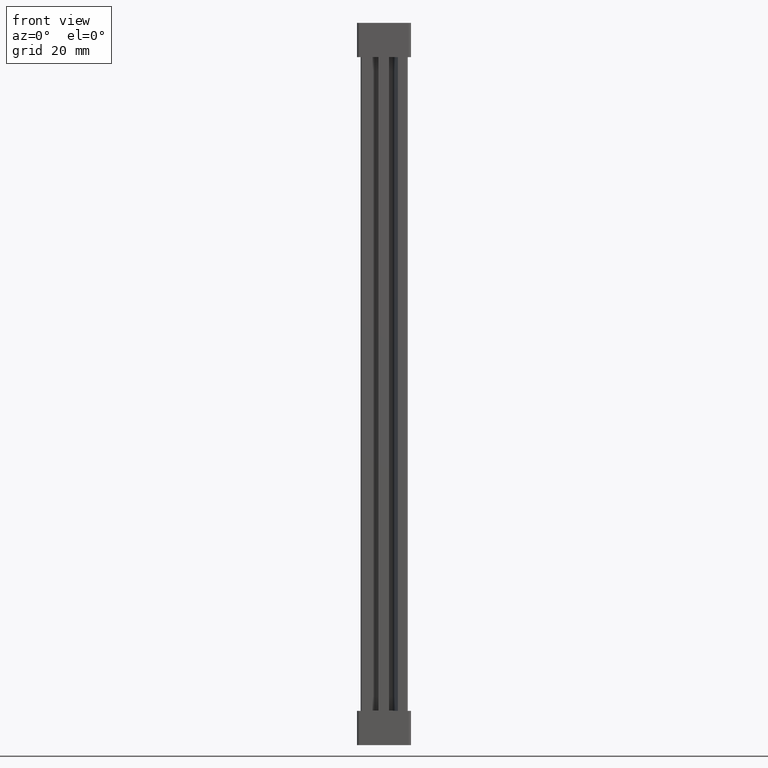
[diagram: clean part render]
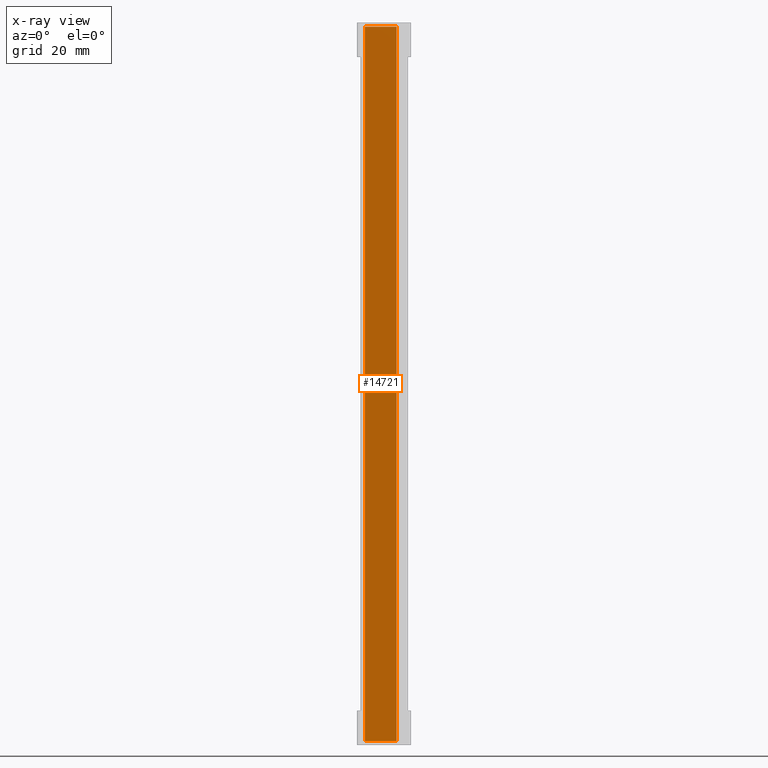
[diagram: x-ray — body ghosted, one internal face saturated and labeled with its STEP entity id]
A machine part, front view, then the same camera in x-ray: the body is ghosted and one INTERNAL B-rep face — a face not visible from any outside direction — is saturated and labeled: STEP entity #14721.
In plain terms, the highlighted planar face has unit normal (0, 1, 0).
Its self-contained STEP definition (entity closure, byte-faithful):
#284 = CARTESIAN_POINT ( 'NONE',  ( 0.6259999999999179600, 16.44999999999992800, 217.8000000000582500 ) ) ;
#1159 = CARTESIAN_POINT ( 'NONE',  ( 10.24323328473354500, 16.44999999999992800, 217.8000000000267300 ) ) ;
#2345 = CARTESIAN_POINT ( 'NONE',  ( 10.24323328473354500, 16.44999999999992800, 1.199999999946530100 ) ) ;
#2378 = CARTESIAN_POINT ( 'NONE',  ( 0.6259999999999179600, 16.44999999999992800, 1.199999999943343900 ) ) ;
#2586 = FACE_OUTER_BOUND ( 'NONE', #20987, .T. ) ;
#2588 = CARTESIAN_POINT ( 'NONE',  ( 6.525548534933081500, 16.44999999999992800, 220.2000000000000200 ) ) ;
#2589 = DIRECTION ( 'NONE',  ( 0.0000000000000000000, 1.000000000000000000, 0.0000000000000000000 ) ) ;
#2599 = PLANE ( 'NONE',  #16928 ) ;
#2670 = DIRECTION ( 'NONE',  ( 0.0000000000000000000, -0.0000000000000000000, 1.000000000000000000 ) ) ;
#3874 = CARTESIAN_POINT ( 'NONE',  ( 13.86600000010872900, 16.44999999999992800, 217.8000000000516800 ) ) ;
#3875 = DIRECTION ( 'NONE',  ( -1.000000000000000000, -0.0000000000000000000, 4.965472477636011600E-013 ) ) ;
#3906 = LINE ( 'NONE', #3874, #18875 ) ;
#4010 = CARTESIAN_POINT ( 'NONE',  ( 13.86600000010872900, 16.44999999999992800, 1.199999999948319100 ) ) ;
#4044 = LINE ( 'NONE', #4010, #18901 ) ;
#4060 = CARTESIAN_POINT ( 'NONE',  ( 0.6259999999999174000, 16.44999999999992800, 220.2000000000000200 ) ) ;
#4079 = LINE ( 'NONE', #4060, #18953 ) ;
#4082 = DIRECTION ( 'NONE',  ( 0.0000000000000000000, -0.0000000000000000000, 1.000000000000000000 ) ) ;
#4092 = DIRECTION ( 'NONE',  ( 1.000000000000000000, -0.0000000000000000000, 4.965472477636011600E-013 ) ) ;
#4129 = LINE ( 'NONE', #4143, #18974 ) ;
#4141 = DIRECTION ( 'NONE',  ( -0.0000000000000000000, -0.0000000000000000000, -1.000000000000000000 ) ) ;
#4143 = CARTESIAN_POINT ( 'NONE',  ( 10.24323328473354500, 16.44999999999991800, 220.2000000000000200 ) ) ;
#6230 = EDGE_CURVE ( 'NONE', #11920, #11967, #3906, .T. ) ;
#6277 = EDGE_CURVE ( 'NONE', #12021, #12032, #4044, .T. ) ;
#6286 = EDGE_CURVE ( 'NONE', #12021, #11967, #4079, .T. ) ;
#6340 = EDGE_CURVE ( 'NONE', #11920, #12032, #4129, .T. ) ;
#11920 = VERTEX_POINT ( 'NONE', #1159 ) ;
#11967 = VERTEX_POINT ( 'NONE', #284 ) ;
#12021 = VERTEX_POINT ( 'NONE', #2378 ) ;
#12032 = VERTEX_POINT ( 'NONE', #2345 ) ;
#14721 = ADVANCED_FACE ( 'NONE', ( #2586 ), #2599, .F. ) ;
#15581 = ORIENTED_EDGE ( 'NONE', *, *, #6286, .F. ) ;
#15606 = ORIENTED_EDGE ( 'NONE', *, *, #6230, .T. ) ;
#15612 = ORIENTED_EDGE ( 'NONE', *, *, #6340, .F. ) ;
#15614 = ORIENTED_EDGE ( 'NONE', *, *, #6277, .T. ) ;
#16928 = AXIS2_PLACEMENT_3D ( 'NONE', #2588, #2589, #2670 ) ;
#18875 = VECTOR ( 'NONE', #3875, 1000.000000000000000 ) ;
#18901 = VECTOR ( 'NONE', #4092, 1000.000000000000000 ) ;
#18953 = VECTOR ( 'NONE', #4082, 1000.000000000000000 ) ;
#18974 = VECTOR ( 'NONE', #4141, 1000.000000000000000 ) ;
#20987 = EDGE_LOOP ( 'NONE', ( #15606, #15581, #15614, #15612 ) ) ;